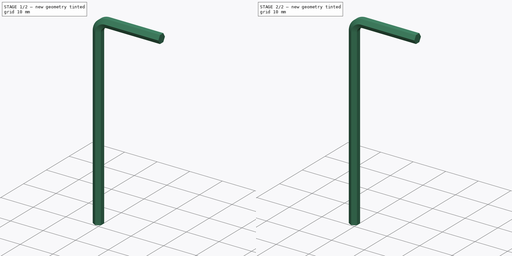
[diagram: build sequence overview — one tinted view per stage of 2, left to right]
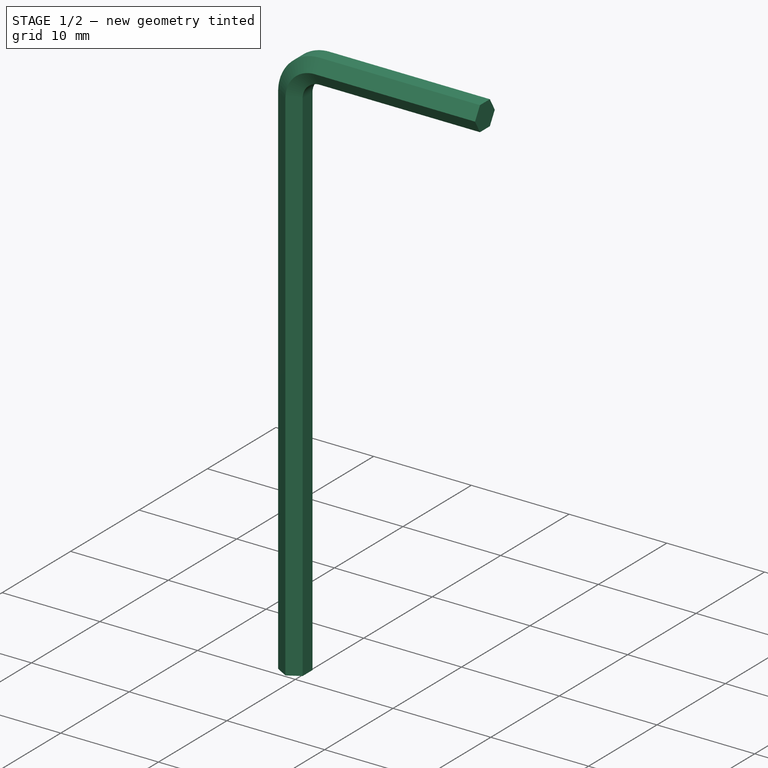
[diagram: stage 1 of 2 — iso view after this stage's code; geometry added in this stage tinted green]
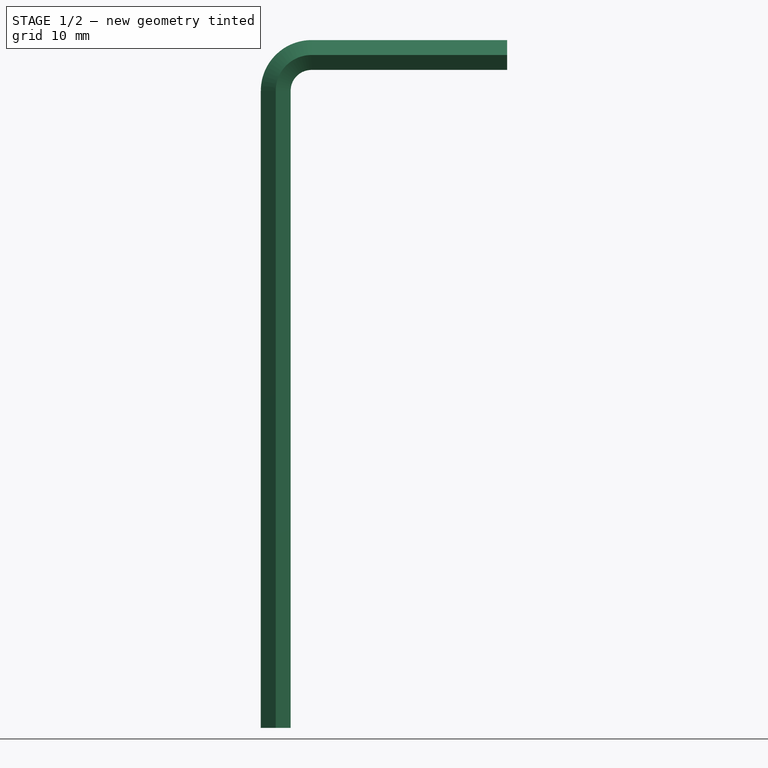
[diagram: stage 1 of 2 — front view after this stage's code; geometry added in this stage tinted green]
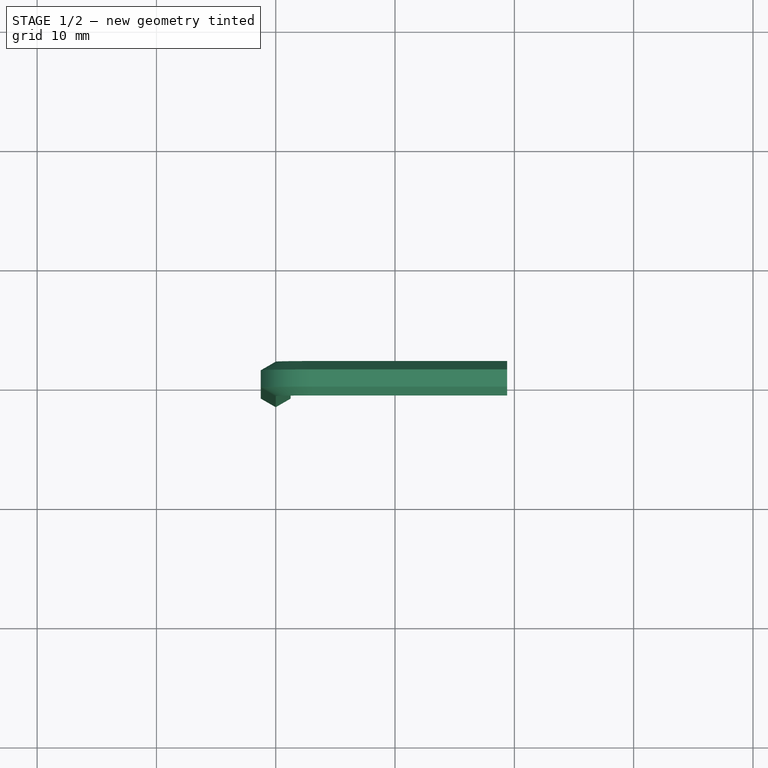
[diagram: stage 1 of 2 — top view after this stage's code; geometry added in this stage tinted green]
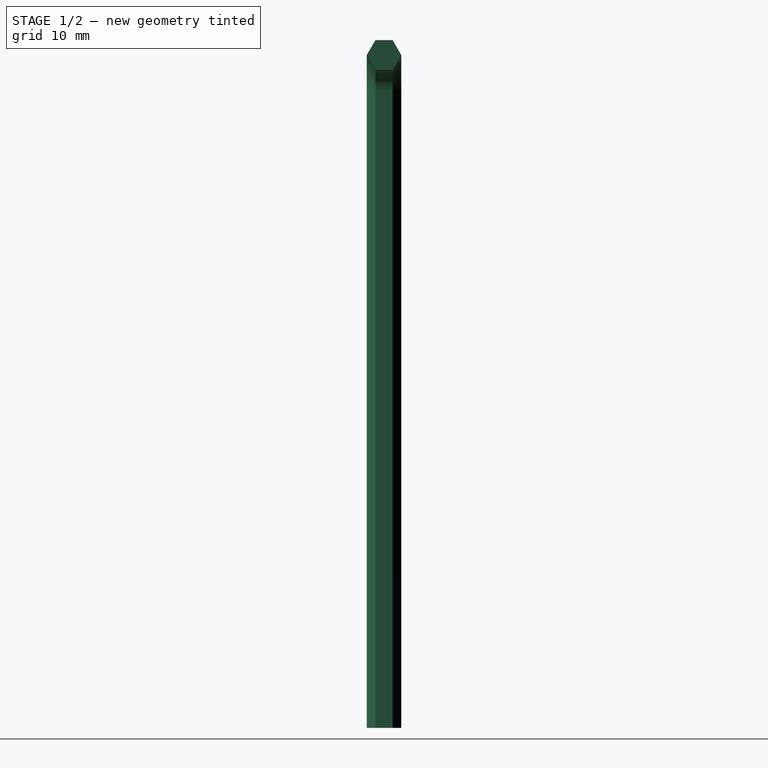
[diagram: stage 1 of 2 — right view after this stage's code; geometry added in this stage tinted green]
FCSTD DOCUMENT  (FreeCAD 0.14R3702 (Git))
Label: hex-key-2_5
License: CC-BY 3.0
LicenseURL: http://creativecommons.org/licenses/by/3.0/
objects: Sketcher::SketchObject×2, Part::Sweep×1, Part::Fillet×1
note: 4 computed .brp shape members not serialized (recipe doc carries the construction recipe); baked Part::Feature solids carry a one-line shape summary decoded from their .brp

FEATURE [Sketcher::SketchObject] Sketch  label="hegagon-sketch"
  sketch-geometry (8):
    g0: LineSegment StartX=0 StartY=1.44338 StartZ=0 EndX=-1.25 EndY=0.721688 EndZ=0
    g1: LineSegment StartX=-1.25 StartY=0.721688 StartZ=0 EndX=-1.25 EndY=-0.721688 EndZ=0
    g2: LineSegment [constr] StartX=-1.25 StartY=0.721688 StartZ=0 EndX=0 EndY=0 EndZ=0
    g3: LineSegment [constr] StartX=-1.25 StartY=0.721688 StartZ=0 EndX=0 EndY=0.721688 EndZ=0
    g4: LineSegment StartX=-1.25 StartY=-0.721688 StartZ=0 EndX=0 EndY=-1.44338 EndZ=0
    g5: LineSegment StartX=0 StartY=1.44338 StartZ=0 EndX=1.25 EndY=0.721688 EndZ=0
    g6: LineSegment StartX=1.25 StartY=0.721688 StartZ=0 EndX=1.25 EndY=-0.721688 EndZ=0
    g7: LineSegment StartX=1.25 StartY=-0.721688 StartZ=0 EndX=0 EndY=-1.44338 EndZ=0
  constraints (21):
    c: PointOnObject(g0,g-2)
    c: Coincident(g0,g1)
    c: Coincident(g2,g-1)
    c: Angle(g-2,g2) = 1.0472
    c: Coincident(g3,g2)
    c: PointOnObject(g3,g-2)
    c: Horizontal(g3)
    c: Coincident(g0,g2)
    c: Symmetric(g0,g1,g-1)
    c: Equal(g0,g1)
    c: Coincident(g4,g1)
    c: PointOnObject(g4,g-2)
    c: Symmetric(g4,g0,g-1)
    c: Coincident(g0,g5)
    c: Coincident(g5,g6)
    c: Vertical(g6)
    c: Coincident(g6,g7)
    c: Coincident(g7,g4)
    c: Symmetric(g0,g5,g-2)
    c: Symmetric(g6,g1,g-2)
    c: DistanceX(g0,g5) = 2.5
FEATURE [Sketcher::SketchObject] Sketch001  label="key-path"
  Placement = pos=(0,0,0) rot=(-1,0,0;4.71239rad)
  sketch-geometry (3):
    g0: LineSegment StartX=0 StartY=0 StartZ=0 EndX=0 EndY=53.4 EndZ=0
    g1: LineSegment StartX=3 StartY=56.4 StartZ=0 EndX=19.4 EndY=56.4 EndZ=0
    g2: ArcOfCircle CenterX=3 CenterY=53.4 CenterZ=0 NormalX=0 NormalY=0 NormalZ=1 Radius=3 StartAngle=1.5708 EndAngle=3.14159
  constraints (8):
    c: Coincident(g0,g-1)
    c: Horizontal(g1)
    c: Vertical(g0)
    c: Tangent(g1,g2)
    c: Tangent(g0,g2)
    c: Radius(g2) = 3
    c: DistanceX(g0,g1) = 19.4
    c: DistanceY(g-1,g1) = 56.4
FEATURE [Part::Sweep] Sweep  label="key-body"
  Frenet = true
  Sections = -> [Sketch]
  Solid = true
  Spine = -> Sketch001
  Transition = 1
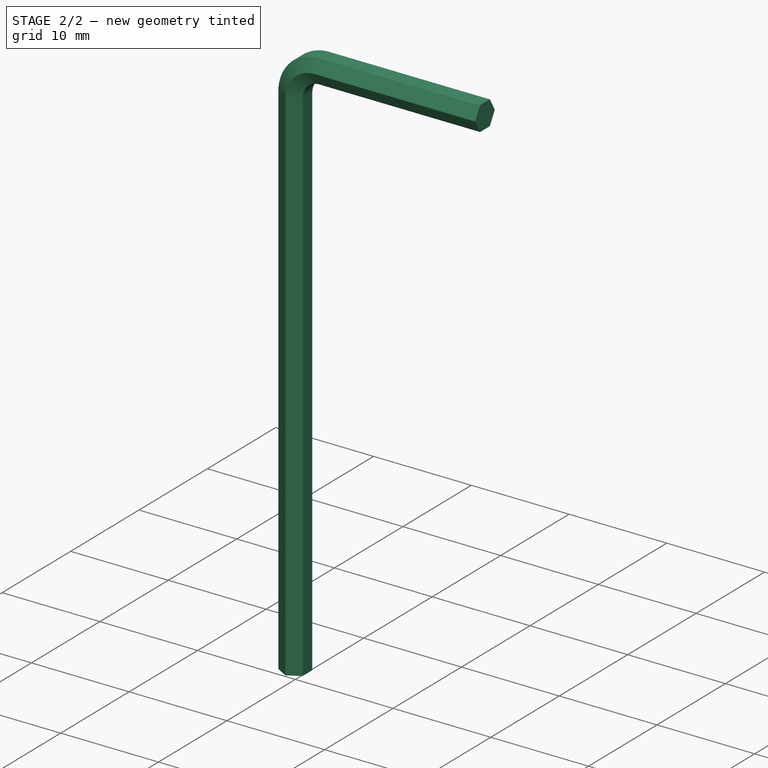
[diagram: stage 2 of 2 — iso view after this stage's code; geometry added in this stage tinted green]
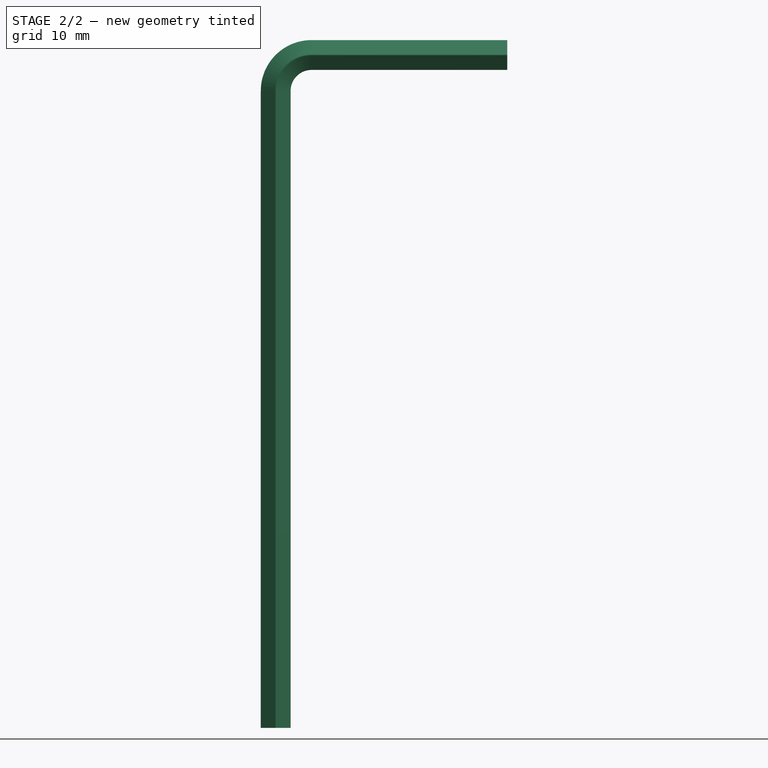
[diagram: stage 2 of 2 — front view after this stage's code; geometry added in this stage tinted green]
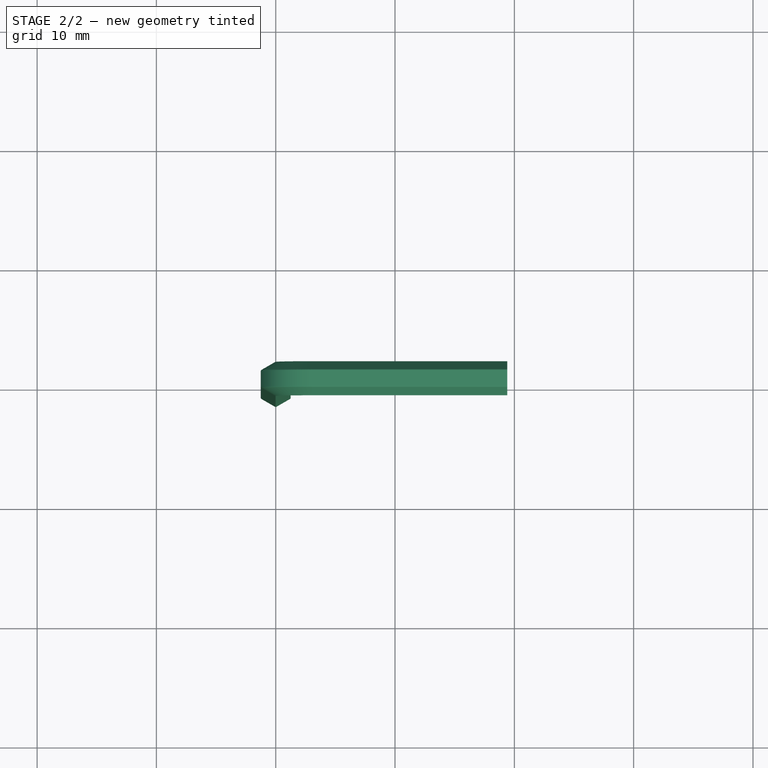
[diagram: stage 2 of 2 — top view after this stage's code; geometry added in this stage tinted green]
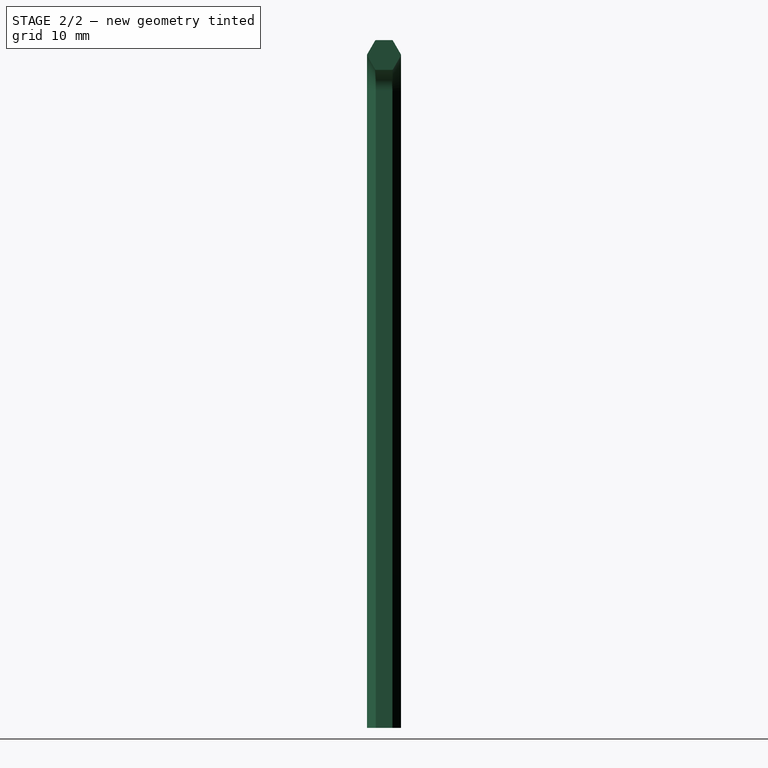
[diagram: stage 2 of 2 — right view after this stage's code; geometry added in this stage tinted green]
FEATURE [Part::Fillet] Fillet
  Base = -> Sweep
  Edges = 6 edges r=0.1: [Edge1,Edge3,Edge6,Edge9,Edge12,Edge15]
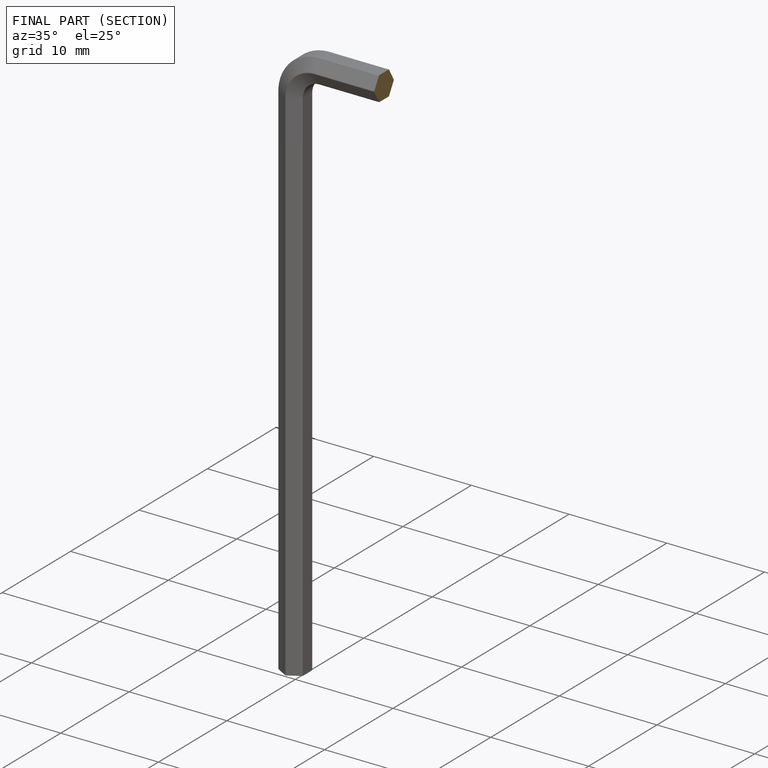
[diagram: finished part — half-section view (interior)]
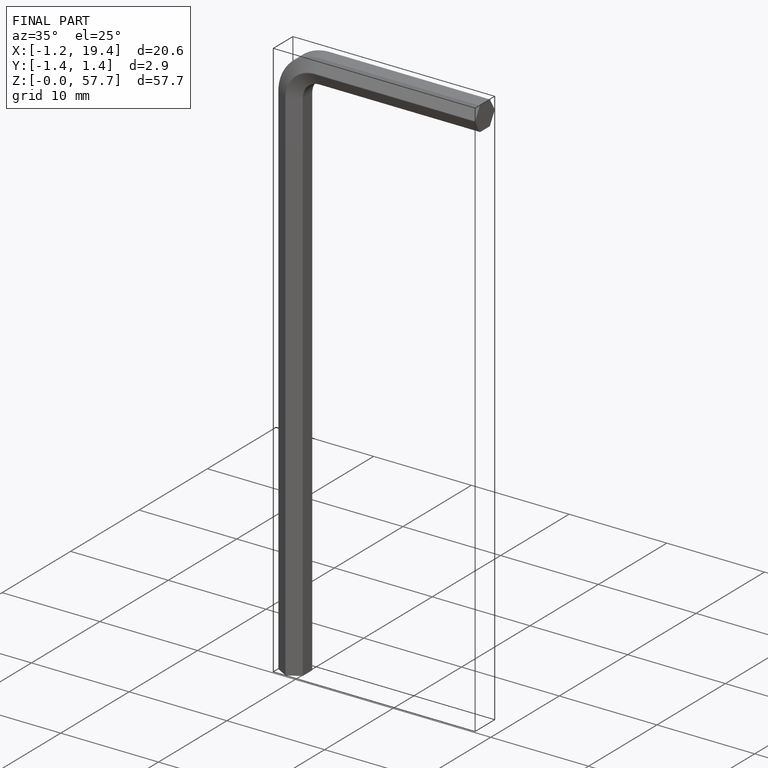
[diagram: finished part — iso view with bounding-box wireframe]
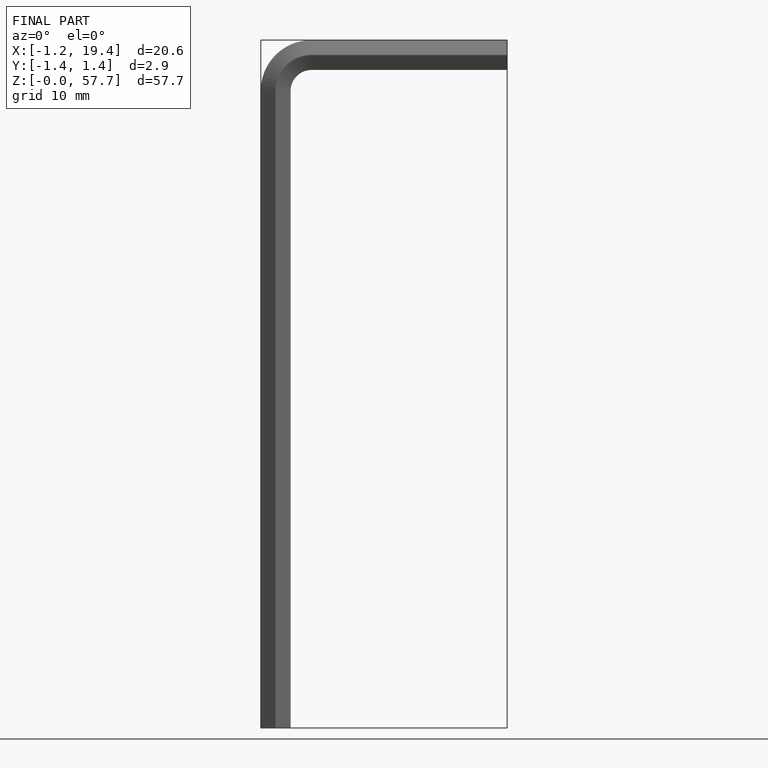
[diagram: finished part — front view with bounding-box wireframe]
